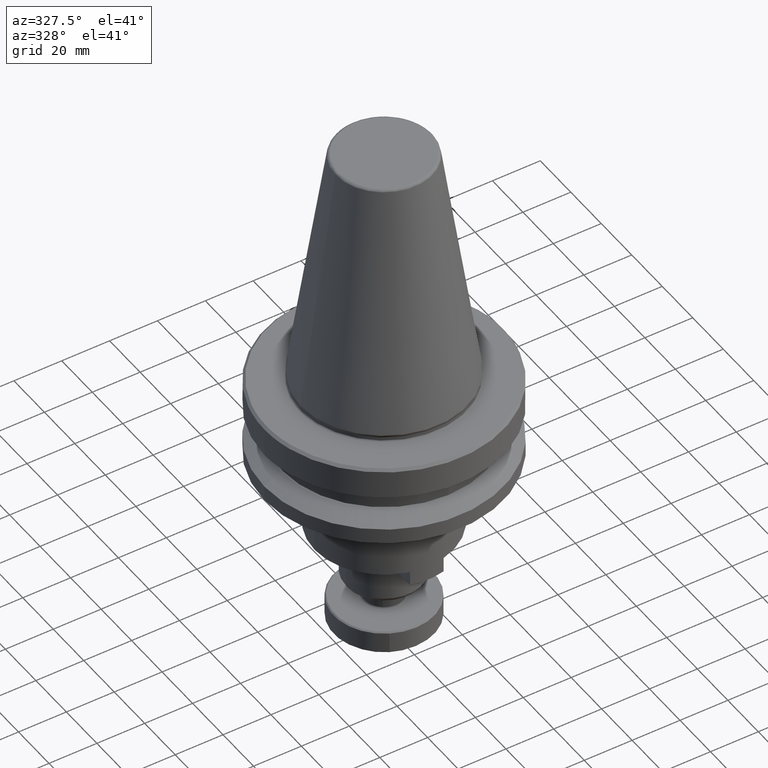
[diagram: clean part render]
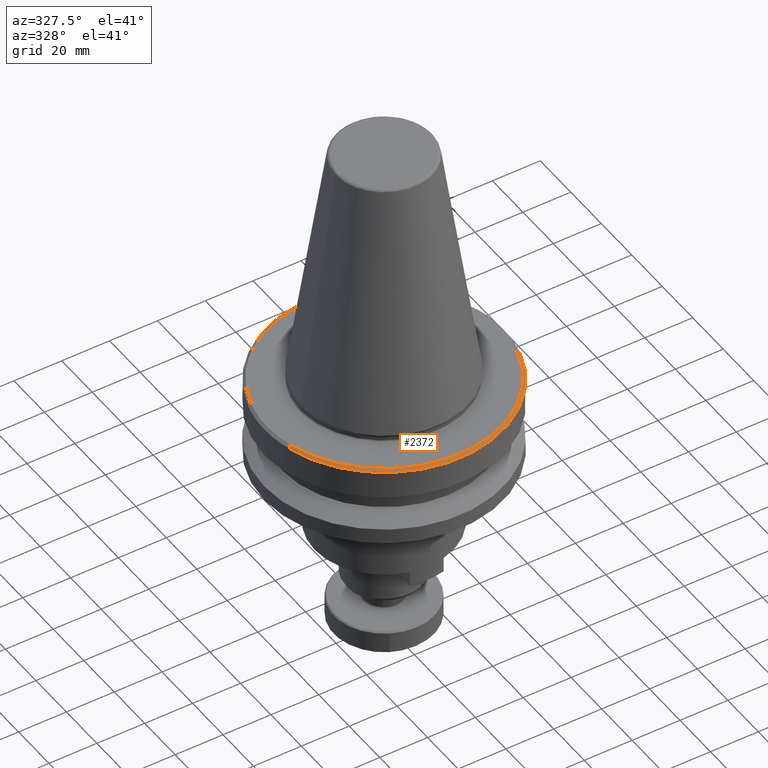
[diagram: same view with one face highlighted and labeled with its STEP entity id]
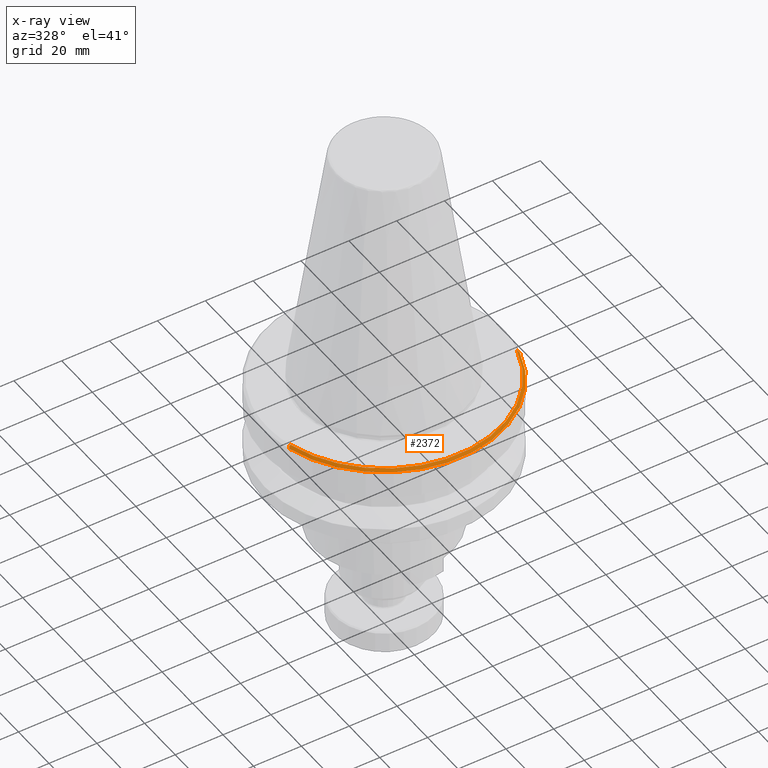
[diagram: x-ray of the same camera — body ghosted, the highlighted face saturated]
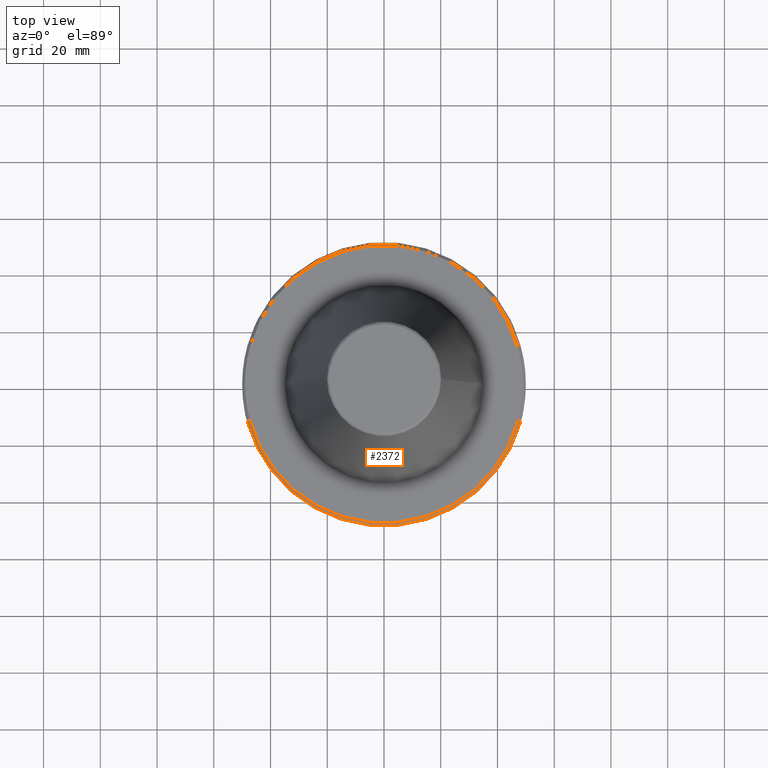
[diagram: same view with one face highlighted and labeled with its STEP entity id]
A machine part, auxiliary view. The second image highlights one B-rep face of the part: STEP entity #2372.
The next image is the same camera in x-ray: the body ghosted, the highlighted face saturated — about 0% of this face is hidden behind the body in this view.
A second angle (top view) of the same face is appended — the face is thin or edge-on in the first view.
In plain terms, the highlighted conical surface has half-angle 45 deg.
Its self-contained STEP definition (entity closure, byte-faithful):
#63 = ORIENTED_EDGE ( 'NONE', *, *, #2046, .T. ) ;
#164 = CARTESIAN_POINT ( 'NONE',  ( 47.28506635103293100, -12.85000000000000000, -2.999999998179456700 ) ) ;
#255 = CARTESIAN_POINT ( 'NONE',  ( 48.13724170581974700, -13.52057546847027000, -4.000000001122649500 ) ) ;
#269 = AXIS2_PLACEMENT_3D ( 'NONE', #2581, #2776, #1706 ) ;
#331 = ORIENTED_EDGE ( 'NONE', *, *, #2534, .T. ) ;
#390 = VERTEX_POINT ( 'NONE', #1020 ) ;
#438 = CARTESIAN_POINT ( 'NONE',  ( -47.43953563115447700, -12.85000000000000100, -3.149063062669632100 ) ) ;
#482 = EDGE_CURVE ( 'NONE', #390, #1721, #2086, .T. ) ;
#504 = EDGE_CURVE ( 'NONE', #2730, #2710, #1450, .T. ) ;
#530 = CARTESIAN_POINT ( 'NONE',  ( -48.13724170554895200, -13.52057547122213100, -4.000000000914546700 ) ) ;
#577 = CARTESIAN_POINT ( 'NONE',  ( 47.74839958408584600, -12.84999999940576000, -3.447266484875149800 ) ) ;
#639 = ORIENTED_EDGE ( 'NONE', *, *, #504, .F. ) ;
#642 = CARTESIAN_POINT ( 'NONE',  ( -47.74839958618509400, -12.85000000098257200, -3.447266487312049800 ) ) ;
#700 = CARTESIAN_POINT ( 'NONE',  ( 47.74839958408584600, -12.84999999940576000, -3.447266484875149800 ) ) ;
#724 = EDGE_CURVE ( 'NONE', #1721, #2450, #2153, .T. ) ;
#810 = CARTESIAN_POINT ( 'NONE',  ( 48.00786110992230200, -13.29745289959658900, -3.815104589466952000 ) ) ;
#948 = AXIS2_PLACEMENT_3D ( 'NONE', #2634, #1306, #2821 ) ;
#974 = AXIS2_PLACEMENT_3D ( 'NONE', #1003, #1238, #1025 ) ;
#1003 = CARTESIAN_POINT ( 'NONE',  ( 0.0000000000000000000, 3.761581922527271600E-033, -4.000000001383053700 ) ) ;
#1020 = CARTESIAN_POINT ( 'NONE',  ( -47.28506635026831600, -12.85000000000000000, -2.999999997441599000 ) ) ;
#1025 = DIRECTION ( 'NONE',  ( 0.0000000000000000000, 1.000000000000000000, 0.0000000000000000000 ) ) ;
#1117 = CARTESIAN_POINT ( 'NONE',  ( -47.87824969490405600, -13.07393226927366700, -3.630849223616566100 ) ) ;
#1142 = CARTESIAN_POINT ( 'NONE',  ( -47.74839958618509400, -12.85000000098257200, -3.447266487312049800 ) ) ;
#1211 = CARTESIAN_POINT ( 'NONE',  ( -47.59397981436200800, -12.85000000000000100, -3.298152137713385100 ) ) ;
#1218 = CARTESIAN_POINT ( 'NONE',  ( 47.74839958408584600, -12.84999999940576000, -3.447266484875149800 ) ) ;
#1238 = DIRECTION ( 'NONE',  ( 0.0000000000000000000, 8.673617379644115400E-018, -1.000000000000000000 ) ) ;
#1306 = DIRECTION ( 'NONE',  ( -0.0000000000000000000, -4.425314989917378000E-018, 1.000000000000000000 ) ) ;
#1442 = CARTESIAN_POINT ( 'NONE',  ( -47.28506635026831600, -12.85000000000000000, -2.999999997441599000 ) ) ;
#1450 = B_SPLINE_CURVE_WITH_KNOTS ( 'NONE', 3,
 ( #577, #2273, #810, #2309 ),
 .UNSPECIFIED., .F., .F.,
 ( 4, 4 ),
 ( 1.356797777059377400E-012, 0.0009520420147831656300 ),
 .UNSPECIFIED. ) ;
#1473 = CIRCLE ( 'NONE', #269, 48.99999999635891600 ) ;
#1521 = EDGE_CURVE ( 'NONE', #2730, #2207, #1604, .T. ) ;
#1604 = B_SPLINE_CURVE_WITH_KNOTS ( 'NONE', 3,
 ( #700, #2279, #1818, #164 ),
 .UNSPECIFIED., .F., .F.,
 ( 4, 4 ),
 ( 0.0000000000000000000, 0.0006439914546435249800 ),
 .UNSPECIFIED. ) ;
#1706 = DIRECTION ( 'NONE',  ( 0.0000000000000000000, 1.000000000000000000, 8.850629980131176600E-018 ) ) ;
#1721 = VERTEX_POINT ( 'NONE', #2518 ) ;
#1768 = FACE_OUTER_BOUND ( 'NONE', #2626, .T. ) ;
#1818 = CARTESIAN_POINT ( 'NONE',  ( 47.43953562896407300, -12.85000000000000100, -3.149063060555559200 ) ) ;
#1838 = CONICAL_SURFACE ( 'NONE', #974, 50.00000000138305000, 0.7853981633974447300 ) ;
#1896 = CARTESIAN_POINT ( 'NONE',  ( -48.00786111063407400, -13.29745290119248000, -3.815104590580810300 ) ) ;
#1919 = ORIENTED_EDGE ( 'NONE', *, *, #1521, .T. ) ;
#1920 = ORIENTED_EDGE ( 'NONE', *, *, #482, .T. ) ;
#1926 = CIRCLE ( 'NONE', #948, 50.00000000138305000 ) ;
#2046 = EDGE_CURVE ( 'NONE', #2207, #390, #1473, .T. ) ;
#2086 = B_SPLINE_CURVE_WITH_KNOTS ( 'NONE', 3,
 ( #1442, #438, #1211, #1142 ),
 .UNSPECIFIED., .F., .F.,
 ( 4, 4 ),
 ( 0.0000000000000000000, 0.0006439914583734553000 ),
 .UNSPECIFIED. ) ;
#2153 = B_SPLINE_CURVE_WITH_KNOTS ( 'NONE', 3,
 ( #642, #1117, #1896, #530 ),
 .UNSPECIFIED., .F., .F.,
 ( 4, 4 ),
 ( 0.0000000000000000000, 0.0009520420115170277300 ),
 .UNSPECIFIED. ) ;
#2207 = VERTEX_POINT ( 'NONE', #2572 ) ;
#2208 = CARTESIAN_POINT ( 'NONE',  ( -48.13724170554895200, -13.52057547122213100, -4.000000000914546700 ) ) ;
#2273 = CARTESIAN_POINT ( 'NONE',  ( 47.87824969277112100, -13.07393226702318500, -3.630849221789552900 ) ) ;
#2279 = CARTESIAN_POINT ( 'NONE',  ( 47.59397981108199400, -12.84999999927901200, -3.298152135378602100 ) ) ;
#2309 = CARTESIAN_POINT ( 'NONE',  ( 48.13724170581974700, -13.52057546847027000, -4.000000001122649500 ) ) ;
#2372 = ADVANCED_FACE ( 'NONE', ( #1768 ), #1838, .T. ) ;
#2450 = VERTEX_POINT ( 'NONE', #2208 ) ;
#2518 = CARTESIAN_POINT ( 'NONE',  ( -47.74839958618509400, -12.85000000098257200, -3.447266487312049800 ) ) ;
#2534 = EDGE_CURVE ( 'NONE', #2450, #2710, #1926, .T. ) ;
#2572 = CARTESIAN_POINT ( 'NONE',  ( 47.28506635103293100, -12.85000000000000000, -2.999999998179456700 ) ) ;
#2581 = CARTESIAN_POINT ( 'NONE',  ( 0.0000000000000000000, -8.673617423221582300E-018, -2.999999996358913500 ) ) ;
#2626 = EDGE_LOOP ( 'NONE', ( #1920, #2733, #331, #639, #1919, #63 ) ) ;
#2634 = CARTESIAN_POINT ( 'NONE',  ( 0.0000000000000000000, 4.425315004888433400E-018, -4.000000001383050100 ) ) ;
#2710 = VERTEX_POINT ( 'NONE', #255 ) ;
#2730 = VERTEX_POINT ( 'NONE', #1218 ) ;
#2733 = ORIENTED_EDGE ( 'NONE', *, *, #724, .T. ) ;
#2776 = DIRECTION ( 'NONE',  ( 0.0000000000000000000, 8.673617379644115400E-018, -1.000000000000000000 ) ) ;
#2821 = DIRECTION ( 'NONE',  ( 0.0000000000000000000, 1.000000000000000000, -5.204170427786469000E-017 ) ) ;